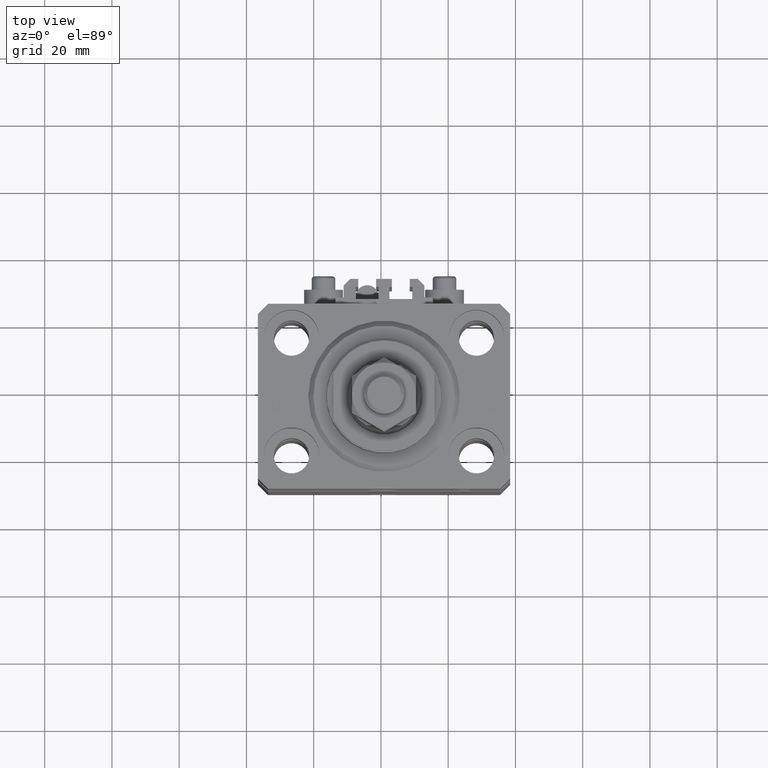
[diagram: clean part render]
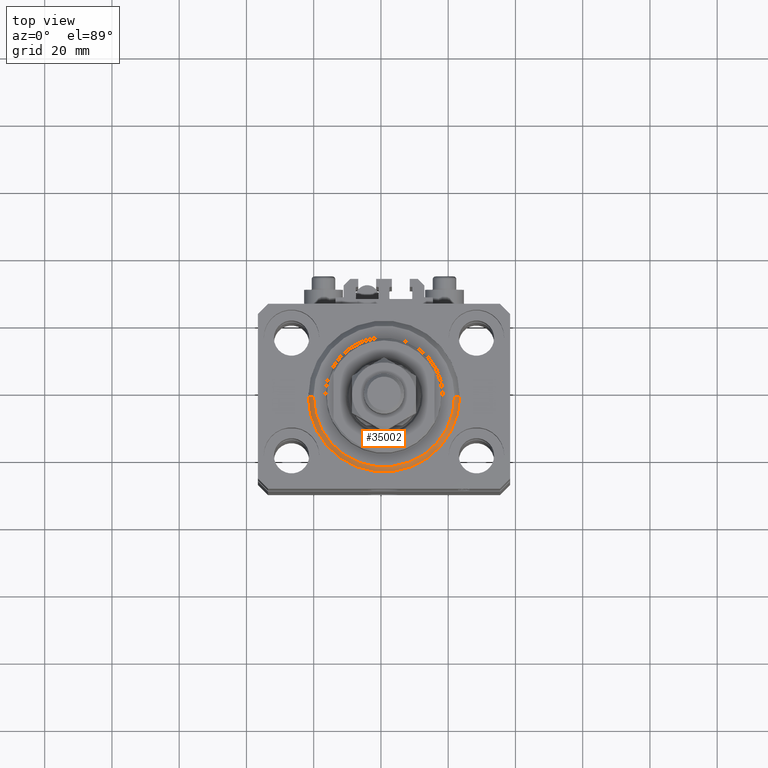
[diagram: same view with one face highlighted and labeled with its STEP entity id]
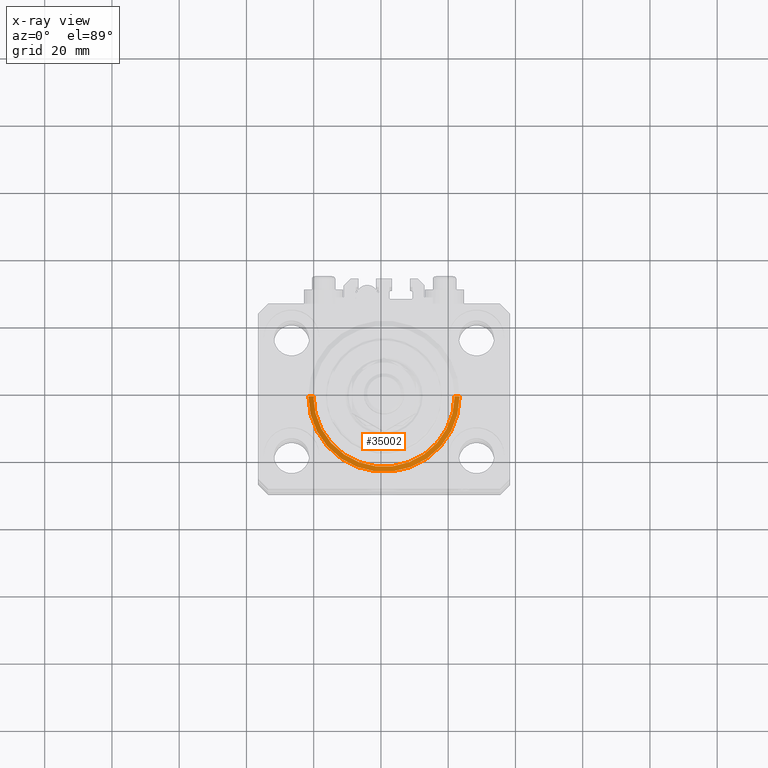
[diagram: x-ray of the same camera — body ghosted, the highlighted face saturated]
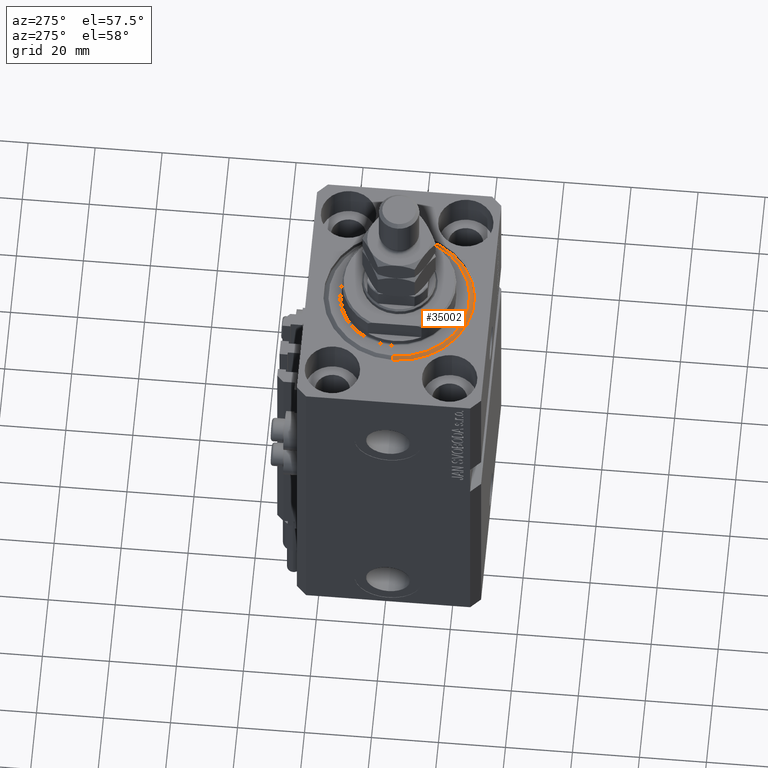
[diagram: same view with one face highlighted and labeled with its STEP entity id]
A machine part, top view. The second image highlights one B-rep face of the part: STEP entity #35002.
The next image is the same camera in x-ray: the body ghosted, the highlighted face saturated — about 0% of this face is hidden behind the body in this view.
A second angle (auxiliary view) of the same face is appended — the face is thin or edge-on in the first view.
In plain terms, the highlighted conical surface has half-angle 45 deg.
Its self-contained STEP definition (entity closure, byte-faithful):
#1428 = CIRCLE ( 'NONE', #45867, 22.50000000000000355 ) ;
#1822 = CARTESIAN_POINT ( 'NONE',  ( 0.000000000000000000, 0.000000000000000000, 1.500000000000039524 ) ) ;
#2076 = FACE_OUTER_BOUND ( 'NONE', #36326, .T. ) ;
#2461 = AXIS2_PLACEMENT_3D ( 'NONE', #42765, #27388, #15945 ) ;
#3666 = ORIENTED_EDGE ( 'NONE', *, *, #11808, .F. ) ;
#3738 = VECTOR ( 'NONE', #26372, 1000.000000000000114 ) ;
#5078 = CARTESIAN_POINT ( 'NONE',  ( -20.99999999999995381, 2.663606788145490261E-15, 0.000000000000000000 ) ) ;
#5897 = VERTEX_POINT ( 'NONE', #35670 ) ;
#10026 = DIRECTION ( 'NONE',  ( 1.000000000000000000, 0.000000000000000000, 0.000000000000000000 ) ) ;
#10791 = CARTESIAN_POINT ( 'NONE',  ( 22.50000000000000355, 0.000000000000000000, 1.500000000000039524 ) ) ;
#11808 = EDGE_CURVE ( 'NONE', #5897, #14261, #38148, .T. ) ;
#12328 = CONICAL_SURFACE ( 'NONE', #40140, 22.50000000000000355, 0.7853981633974517207 ) ;
#14261 = VERTEX_POINT ( 'NONE', #5078 ) ;
#14920 = CARTESIAN_POINT ( 'NONE',  ( -22.50000000000000355, 2.755455298081545172E-15, 1.500000000000039524 ) ) ;
#15945 = DIRECTION ( 'NONE',  ( 1.000000000000000000, 0.000000000000000000, 0.000000000000000000 ) ) ;
#18275 = DIRECTION ( 'NONE',  ( 0.7071067811865500152, 0.000000000000000000, 0.7071067811865451302 ) ) ;
#22183 = CARTESIAN_POINT ( 'NONE',  ( -22.50000000000000355, 0.000000000000000000, 1.500000000000039524 ) ) ;
#23459 = DIRECTION ( 'NONE',  ( 1.000000000000000000, 0.000000000000000000, 0.000000000000000000 ) ) ;
#24965 = DIRECTION ( 'NONE',  ( -0.000000000000000000, -0.000000000000000000, 1.000000000000000000 ) ) ;
#26095 = CARTESIAN_POINT ( 'NONE',  ( 22.50000000000000355, 2.755455298081544383E-15, 1.500000000000039524 ) ) ;
#26372 = DIRECTION ( 'NONE',  ( -0.7071067811865500152, 8.659560562354962440E-17, 0.7071067811865451302 ) ) ;
#27006 = ORIENTED_EDGE ( 'NONE', *, *, #41224, .F. ) ;
#27388 = DIRECTION ( 'NONE',  ( -0.000000000000000000, -0.000000000000000000, -1.000000000000000000 ) ) ;
#29559 = ORIENTED_EDGE ( 'NONE', *, *, #39735, .F. ) ;
#32962 = VECTOR ( 'NONE', #18275, 1000.000000000000114 ) ;
#35002 = ADVANCED_FACE ( 'NONE', ( #2076 ), #12328, .T. ) ;
#35670 = CARTESIAN_POINT ( 'NONE',  ( 20.99999999999995381, 0.000000000000000000, 0.000000000000000000 ) ) ;
#36326 = EDGE_LOOP ( 'NONE', ( #29559, #3666, #41035, #27006 ) ) ;
#38148 = CIRCLE ( 'NONE', #2461, 20.99999999999995381 ) ;
#38594 = DIRECTION ( 'NONE',  ( -0.000000000000000000, -0.000000000000000000, 1.000000000000000000 ) ) ;
#39735 = EDGE_CURVE ( 'NONE', #14261, #48893, #48980, .T. ) ;
#40140 = AXIS2_PLACEMENT_3D ( 'NONE', #1822, #24965, #10026 ) ;
#40731 = VERTEX_POINT ( 'NONE', #26095 ) ;
#40871 = LINE ( 'NONE', #10791, #32962 ) ;
#41035 = ORIENTED_EDGE ( 'NONE', *, *, #47676, .T. ) ;
#41224 = EDGE_CURVE ( 'NONE', #48893, #40731, #1428, .T. ) ;
#42765 = CARTESIAN_POINT ( 'NONE',  ( 0.000000000000000000, 0.000000000000000000, 0.000000000000000000 ) ) ;
#45867 = AXIS2_PLACEMENT_3D ( 'NONE', #46559, #38594, #23459 ) ;
#46559 = CARTESIAN_POINT ( 'NONE',  ( 0.000000000000000000, 0.000000000000000000, 1.500000000000039524 ) ) ;
#47676 = EDGE_CURVE ( 'NONE', #5897, #40731, #40871, .T. ) ;
#48893 = VERTEX_POINT ( 'NONE', #22183 ) ;
#48980 = LINE ( 'NONE', #14920, #3738 ) ;